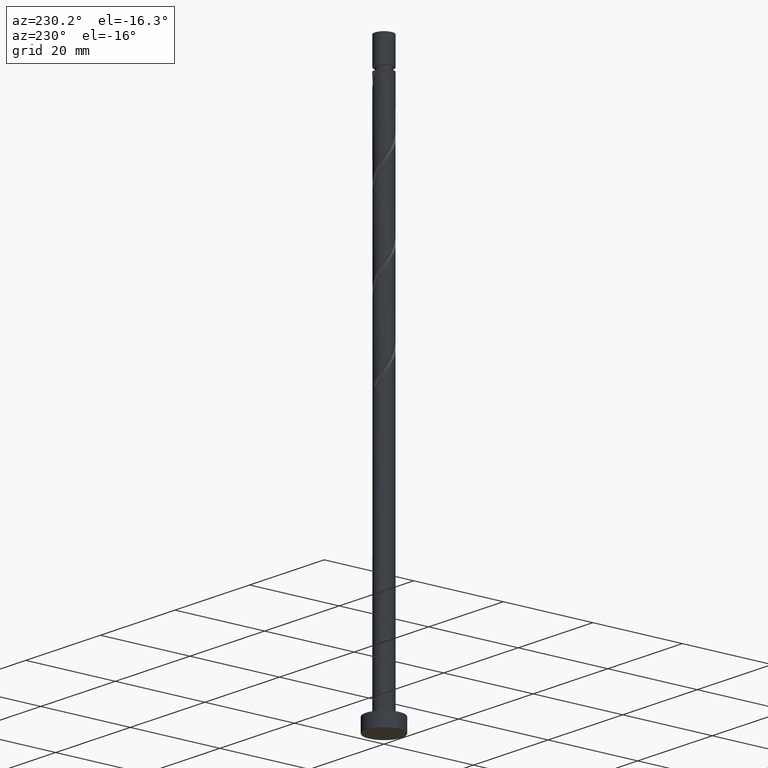
[diagram: clean part render]
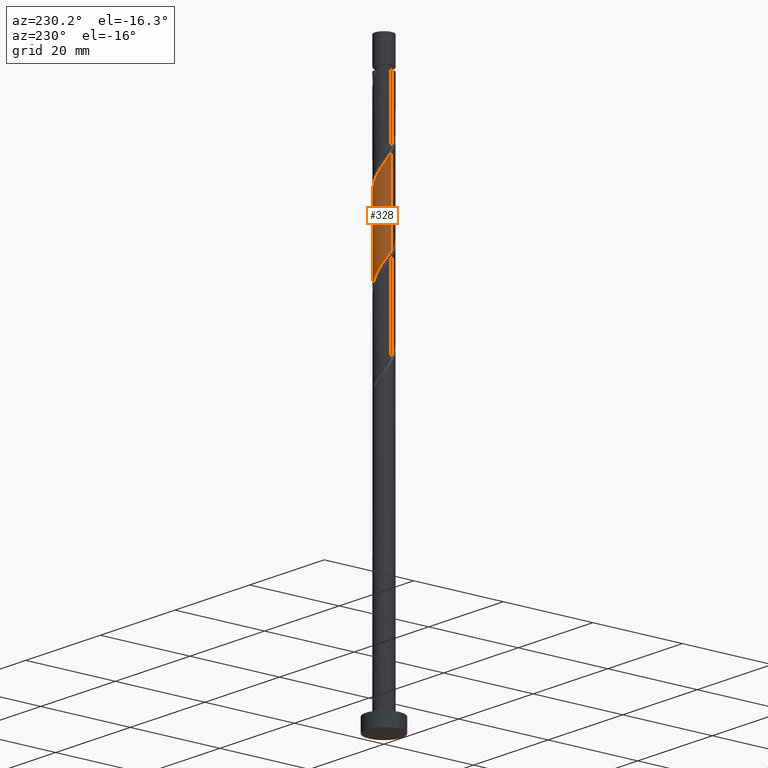
[diagram: same view with one face highlighted and labeled with its STEP entity id]
A machine part, auxiliary view. The second image highlights one B-rep face of the part: STEP entity #328.
In plain terms, the highlighted cylindrical surface (edge-blend (fillet) strip) has radius 2 mm, axis along (-0, -0, -1).
Its self-contained STEP definition (entity closure, byte-faithful):
#5 =( BOUNDED_CURVE ( )  B_SPLINE_CURVE ( 2, ( #454, #80, #1277, #192, #1407, #1032, #326, #938, #317, #72, #1046, #907, #433, #807, #781, #1270, #1534, #1165, #1521, #800, #1179, #558, #440 ),
 .UNSPECIFIED., .F., .T. ) 
 B_SPLINE_CURVE_WITH_KNOTS ( ( 3, 2, 2, 2, 2, 2, 2, 2, 2, 2, 2, 3 ),
 ( 0.6795322023138550271, 0.6875000000000000000, 0.6999999999999999556, 0.7125000000000000222, 0.7249999999999999778, 0.7375000000000000444, 0.7500000000000000000, 0.7624999999999999556, 0.7750000000000000222, 0.7874999999999999778, 0.8000000000000000444, 0.8045322023138552492 ),
 .UNSPECIFIED. ) 
 CURVE ( )  GEOMETRIC_REPRESENTATION_ITEM ( )  RATIONAL_B_SPLINE_CURVE ( ( 0.9039174447099341814, 0.9019565955404631463, 0.9090909090909118362, 0.8978984914501279002, 0.9090909090909118362, 0.8978984914501279002, 0.9090909090909118362, 0.8978984914501279002, 0.9090909090909118362, 0.8978984914501279002, 0.9090909090909118362, 0.8978984914501279002, 0.9090909090909118362, 0.8978984914501279002, 0.9090909090909118362, 0.8978984914501279002, 0.9090909090909118362, 0.8978984914501279002, 0.9090909090909118362, 0.8978984914501279002, 0.9090909090909118362, 0.9050328050005761460, 0.9039174447099340703 ) ) 
 REPRESENTATION_ITEM ( '' )  );
#26 = CARTESIAN_POINT ( 'NONE',  ( 1.896963788657571426, 0.7084284778787407477, 95.21158984378713797 ) ) ;
#32 = DIRECTION ( 'NONE',  ( -0.000000000000000000, -0.000000000000000000, -1.000000000000000000 ) ) ;
#44 = ORIENTED_EDGE ( 'NONE', *, *, #1063, .F. ) ;
#52 = CARTESIAN_POINT ( 'NONE',  ( 0.5418766612026988394, 1.951079754338989725, 98.03658984378714081 ) ) ;
#72 = CARTESIAN_POINT ( 'NONE',  ( -0.5418766612026972851, 1.951079754338987282, 82.02825651045382926 ) ) ;
#80 = CARTESIAN_POINT ( 'NONE',  ( -2.000000000000000888, 0.2010075630518391443, 85.62285991470758972 ) ) ;
#107 = LINE ( 'NONE', #717, #527 ) ;
#192 = CARTESIAN_POINT ( 'NONE',  ( -1.896963788657569427, 0.7084284778787400816, 84.85325651045383211 ) ) ;
#264 = DIRECTION ( 'NONE',  ( -0.000000000000000000, -0.000000000000000000, -1.000000000000000000 ) ) ;
#291 = CARTESIAN_POINT ( 'NONE',  ( 2.000000000000002220, 2.518841267578560185E-15, 94.13977510336466992 ) ) ;
#317 = CARTESIAN_POINT ( 'NONE',  ( -0.8300743961697145679, 1.819608885673919207, 82.49908984378711807 ) ) ;
#326 = CARTESIAN_POINT ( 'NONE',  ( -1.351737732275873904, 1.474043792816779774, 83.44075651045379516 ) ) ;
#328 = ADVANCED_FACE ( 'NONE', ( #419 ), #740, .T. ) ;
#342 = VECTOR ( 'NONE', #32, 1000.000000000000000 ) ;
#376 = DIRECTION ( 'NONE',  ( -0.000000000000000000, -0.000000000000000000, -1.000000000000000000 ) ) ;
#388 = CARTESIAN_POINT ( 'NONE',  ( -1.474043792816781773, 1.351737732275875903, 101.3324231771204609 ) ) ;
#390 = VERTEX_POINT ( 'NONE', #291 ) ;
#395 = CARTESIAN_POINT ( 'NONE',  ( -1.819608885673922094, 0.8300743961697160112, 102.2740898437871522 ) ) ;
#413 = CARTESIAN_POINT ( 'NONE',  ( 1.351737732275876347, 1.474043792816781329, 96.62408984378711807 ) ) ;
#419 = FACE_OUTER_BOUND ( 'NONE', #1512, .T. ) ;
#421 = EDGE_CURVE ( 'NONE', #390, #1040, #1001, .T. ) ;
#422 = CARTESIAN_POINT ( 'NONE',  ( -1.259949568624708638, 1.585203333415018845, 100.8615898437871436 ) ) ;
#433 = CARTESIAN_POINT ( 'NONE',  ( 0.3979949748426495071, 1.959999999999999520, 80.61575651045379232 ) ) ;
#440 = CARTESIAN_POINT ( 'NONE',  ( 1.999999999999999556, 2.009075772949579986E-15, 76.50840458420958612 ) ) ;
#454 = CARTESIAN_POINT ( 'NONE',  ( -1.999999999999999556, -2.278951623047284666E-15, 85.92507125087625752 ) ) ;
#493 = CARTESIAN_POINT ( 'NONE',  ( -2.000000000000003109, 1.004537886474782893E-15, 103.5564417700313413 ) ) ;
#527 = VECTOR ( 'NONE', #376, 1000.000000000000000 ) ;
#531 = DIRECTION ( 'NONE',  ( -1.000000000000000000, 0.000000000000000000, 0.000000000000000000 ) ) ;
#540 = CARTESIAN_POINT ( 'NONE',  ( 1.960000000000002629, 0.3979949748426488410, 94.74075651045380653 ) ) ;
#558 = CARTESIAN_POINT ( 'NONE',  ( 2.000000000000000444, 0.1139474748928633180, 76.67972260885296976 ) ) ;
#654 = CARTESIAN_POINT ( 'NONE',  ( -2.000000000000003109, 1.004537886474782893E-15, 103.5564417700313413 ) ) ;
#717 = CARTESIAN_POINT ( 'NONE',  ( -2.000000000000000000, 0.000000000000000000, 125.0000000000000000 ) ) ;
#740 = CYLINDRICAL_SURFACE ( 'NONE', #1111, 2.000000000000000000 ) ;
#750 = CARTESIAN_POINT ( 'NONE',  ( 2.000000000000000000, 2.449293598294705921E-16, 125.0000000000000000 ) ) ;
#752 = CARTESIAN_POINT ( 'NONE',  ( -0.08756147180655718398, 2.023036211342432722, 98.97825651045380368 ) ) ;
#768 = CARTESIAN_POINT ( 'NONE',  ( -0.9841890232517248593, 1.741083561036295357, 100.3907565104538122 ) ) ;
#772 = ORIENTED_EDGE ( 'NONE', *, *, #421, .T. ) ;
#778 = CARTESIAN_POINT ( 'NONE',  ( 0.2271575946980709526, 1.987057982840712000, 98.50742317712048646 ) ) ;
#781 = CARTESIAN_POINT ( 'NONE',  ( 0.9841890232517244153, 1.741083561036292027, 79.67408984378712944 ) ) ;
#791 = CARTESIAN_POINT ( 'NONE',  ( 1.999999999999999556, 2.009075772949579986E-15, 76.50840458420958612 ) ) ;
#800 = CARTESIAN_POINT ( 'NONE',  ( 1.951079754338987504, 0.5418766612026971741, 77.31992317712047225 ) ) ;
#807 = CARTESIAN_POINT ( 'NONE',  ( 0.7084284778787406367, 1.896963788657568983, 80.14492317712046088 ) ) ;
#832 = ORIENTED_EDGE ( 'NONE', *, *, #1427, .F. ) ;
#872 = CARTESIAN_POINT ( 'NONE',  ( -0.7084284778787407477, 1.896963788657571426, 99.91992317712046656 ) ) ;
#879 = CARTESIAN_POINT ( 'NONE',  ( 1.118272131136733405, 1.688138017008854019, 97.09492317712046372 ) ) ;
#903 = CARTESIAN_POINT ( 'NONE',  ( 2.000000000000002220, 2.518841267578560185E-15, 94.13977510336466992 ) ) ;
#907 = CARTESIAN_POINT ( 'NONE',  ( 0.08756147180655798890, 2.023036211342430502, 81.08658984378715218 ) ) ;
#938 = CARTESIAN_POINT ( 'NONE',  ( -1.118272131136731629, 1.688138017008852021, 82.96992317712046372 ) ) ;
#946 = ORIENTED_EDGE ( 'NONE', *, *, #1545, .F. ) ;
#966 = VERTEX_POINT ( 'NONE', #1015 ) ;
#996 = CARTESIAN_POINT ( 'NONE',  ( -0.3979949748426487299, 1.960000000000002629, 99.44908984378716355 ) ) ;
#1001 = LINE ( 'NONE', #750, #342 ) ;
#1015 = CARTESIAN_POINT ( 'NONE',  ( -1.999999999999999556, -2.278951623047284666E-15, 85.92507125087625752 ) ) ;
#1032 = CARTESIAN_POINT ( 'NONE',  ( -1.585203333415016180, 1.259949568624707750, 83.91158984378714081 ) ) ;
#1040 = VERTEX_POINT ( 'NONE', #791 ) ;
#1046 = CARTESIAN_POINT ( 'NONE',  ( -0.2271575946980697869, 1.987057982840708892, 81.55742317712045519 ) ) ;
#1063 = EDGE_CURVE ( 'NONE', #966, #1040, #5, .T. ) ;
#1111 = AXIS2_PLACEMENT_3D ( 'NONE', #1142, #264, #531 ) ;
#1117 = CARTESIAN_POINT ( 'NONE',  ( -1.688138017008854241, 1.118272131136732961, 101.8032565104538065 ) ) ;
#1137 =( BOUNDED_CURVE ( )  B_SPLINE_CURVE ( 2, ( #903, #1510, #540, #26, #1247, #1240, #413, #879, #1495, #52, #778, #752, #996, #872, #768, #422, #388, #1117, #395, #1144, #1353, #1258, #654 ),
 .UNSPECIFIED., .F., .T. ) 
 B_SPLINE_CURVE_WITH_KNOTS ( ( 3, 2, 2, 2, 2, 2, 2, 2, 2, 2, 2, 3 ),
 ( 0.4295322023138551937, 0.4375000000000000000, 0.4499999999999999556, 0.4625000000000000222, 0.4749999999999999778, 0.4875000000000000444, 0.5000000000000000000, 0.5124999999999999556, 0.5250000000000000222, 0.5374999999999999778, 0.5500000000000000444, 0.5545322023138552492 ),
 .UNSPECIFIED. ) 
 CURVE ( )  GEOMETRIC_REPRESENTATION_ITEM ( )  RATIONAL_B_SPLINE_CURVE ( ( 0.9039174447099402876, 0.9019565955404695856, 0.9090909090909180534, 0.8978984914501340064, 0.9090909090909180534, 0.8978984914501340064, 0.9090909090909180534, 0.8978984914501340064, 0.9090909090909180534, 0.8978984914501340064, 0.9090909090909180534, 0.8978984914501340064, 0.9090909090909180534, 0.8978984914501340064, 0.9090909090909180534, 0.8978984914501340064, 0.9090909090909180534, 0.8978984914501340064, 0.9090909090909180534, 0.8978984914501340064, 0.9090909090909180534, 0.9050328050005823632, 0.9039174447099402876 ) ) 
 REPRESENTATION_ITEM ( '' )  );
#1142 = CARTESIAN_POINT ( 'NONE',  ( 0.000000000000000000, 0.000000000000000000, 125.0000000000000000 ) ) ;
#1144 = CARTESIAN_POINT ( 'NONE',  ( -1.951079754338989725, 0.5418766612026983953, 102.7449231771204978 ) ) ;
#1165 = CARTESIAN_POINT ( 'NONE',  ( 1.688138017008852021, 1.118272131136731184, 78.26158984378714933 ) ) ;
#1179 = CARTESIAN_POINT ( 'NONE',  ( 1.987057982840708892, 0.2271575946980694816, 76.84908984378711239 ) ) ;
#1240 = CARTESIAN_POINT ( 'NONE',  ( 1.585203333415019289, 1.259949568624708638, 96.15325651045380084 ) ) ;
#1247 = CARTESIAN_POINT ( 'NONE',  ( 1.741083561036295801, 0.9841890232517246373, 95.68242317712049783 ) ) ;
#1258 = CARTESIAN_POINT ( 'NONE',  ( -2.000000000000003553, 0.1139474748928642200, 103.3851237453879577 ) ) ;
#1270 = CARTESIAN_POINT ( 'NONE',  ( 1.259949568624707972, 1.585203333415015958, 79.20325651045379800 ) ) ;
#1277 = CARTESIAN_POINT ( 'NONE',  ( -1.959999999999999520, 0.3979949748426490630, 85.32408984378713512 ) ) ;
#1353 = CARTESIAN_POINT ( 'NONE',  ( -1.987057982840712000, 0.2271575946980705363, 103.2157565104538008 ) ) ;
#1407 = CARTESIAN_POINT ( 'NONE',  ( -1.741083561036292249, 0.9841890232517239712, 84.38242317712048646 ) ) ;
#1420 = VERTEX_POINT ( 'NONE', #493 ) ;
#1427 = EDGE_CURVE ( 'NONE', #1420, #966, #107, .T. ) ;
#1495 = CARTESIAN_POINT ( 'NONE',  ( 0.8300743961697165663, 1.819608885673922094, 97.56575651045380937 ) ) ;
#1510 = CARTESIAN_POINT ( 'NONE',  ( 2.000000000000002220, 0.2010075630518426693, 94.44198643953336614 ) ) ;
#1512 = EDGE_LOOP ( 'NONE', ( #946, #772, #44, #832 ) ) ;
#1521 = CARTESIAN_POINT ( 'NONE',  ( 1.819608885673919429, 0.8300743961697141238, 77.79075651045378947 ) ) ;
#1534 = CARTESIAN_POINT ( 'NONE',  ( 1.474043792816780218, 1.351737732275873238, 78.73242317712046656 ) ) ;
#1545 = EDGE_CURVE ( 'NONE', #390, #1420, #1137, .T. ) ;